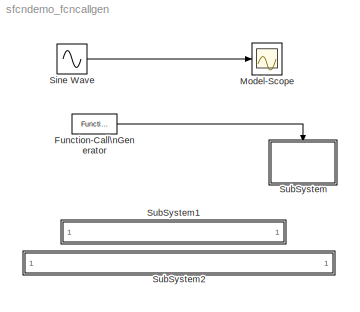
MODEL sfcndemo_fcncallgen
KIND model
BLOCK [Reference] Function-Call\nGenerator  REF=simulink/Ports &\nSubsystems/Function-Call\nGenerator
  Ports = [0, 1]
  SourceBlock = simulink/Ports &\nSubsystems/Function-Call\nGenerator
  SourceType = Function-Call Generator
  numberOfIterations = 1
  sample_time = 1
BLOCK [Scope] Model-Scope
  DataFormat = StructureWithTime
  NumInputPorts = 1
  Ports = [1]
  TimeRange = 10
BLOCK [Sin] Sine Wave
  Amplitude = 5
  Ports = [0, 1]
  SampleTime = 0.01
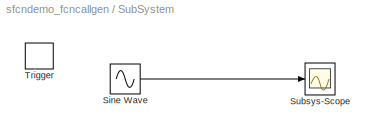
BLOCK [SubSystem] SubSystem
  MinAlgLoopOccurrences = off
  Ports = [0, 0, 0, 1]
  PropExecContextAcrossSSBoundary = on
  RTWSystemCode = Auto
  TreatAsAtomicUnit = off
BLOCK [Sin] SubSystem/Sine Wave
  Ports = [0, 1]
BLOCK [Scope] SubSystem/Subsys-Scope
  DataFormat = StructureWithTime
  NumInputPorts = 1
  Ports = [1]
  TimeRange = 10
  YMax = 1
  YMin = -1
BLOCK [TriggerPort] SubSystem/Trigger
  Ports = []
  TriggerType = function-call
BLOCK [SubSystem] SubSystem1
  MaskDisplay = disp('matlabroot<path>');
  MaskIconFrame = on
  MaskIconOpaque = on
  MaskIconRotate = none
  MaskIconUnits = autoscale
  MinAlgLoopOccurrences = off
  OpenFcn = edit(fullfile(matlabroot,'simulink','src','fcncallgen.c'))
  Ports = []
  PropExecContextAcrossSSBoundary = on
  RTWSystemCode = Auto
  TreatAsAtomicUnit = off
BLOCK [SubSystem] SubSystem2
  MaskDisplay = disp('matlabroot<path>');
  MaskIconFrame = on
  MaskIconOpaque = on
  MaskIconRotate = none
  MaskIconUnits = autoscale
  MinAlgLoopOccurrences = off
  OpenFcn = edit(fullfile(matlabroot,'toolbox','simulink','blocks','tlc_c','fcncallgen.tlc'))
  Ports = []
  PropExecContextAcrossSSBoundary = on
  RTWSystemCode = Auto
  TreatAsAtomicUnit = off
LINE Function-Call\nGenerator:1 -> SubSystem:trigger
LINE Sine Wave:1 -> Model-Scope:1
LINE SubSystem/Sine Wave:1 -> SubSystem/Subsys-Scope:1
note: 2 file-system paths scrubbed to <path> (not preserved elsewhere — flat text is the only slx artifact)
